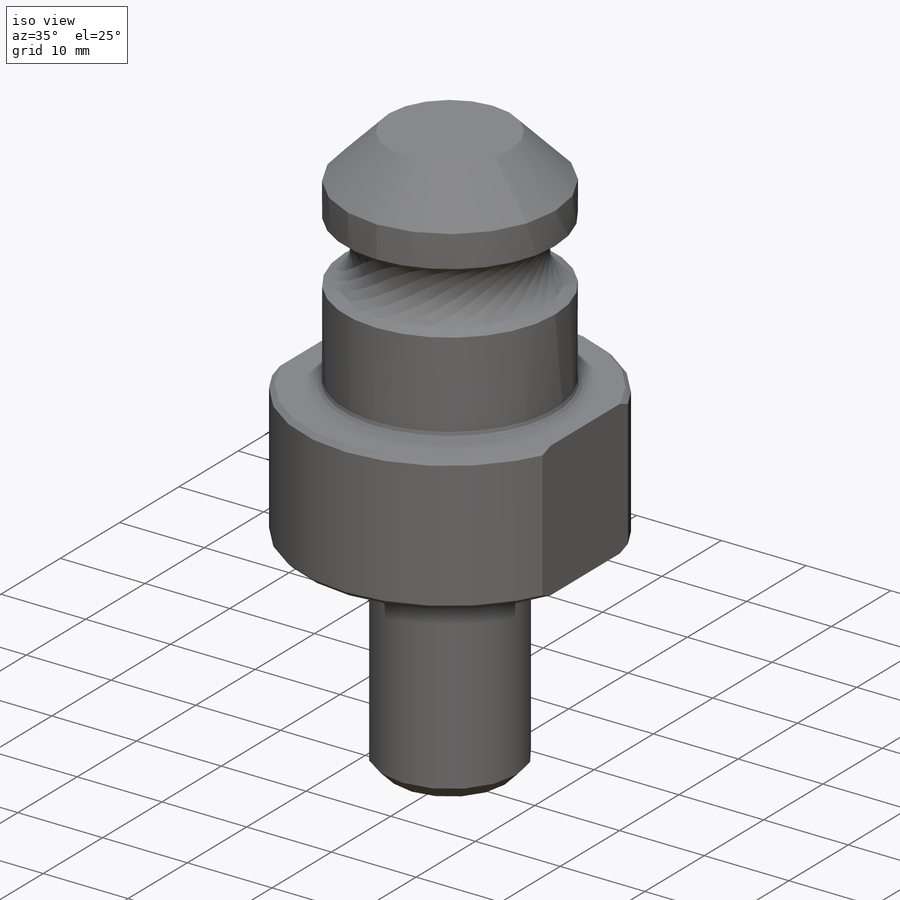
[diagram: iso view]
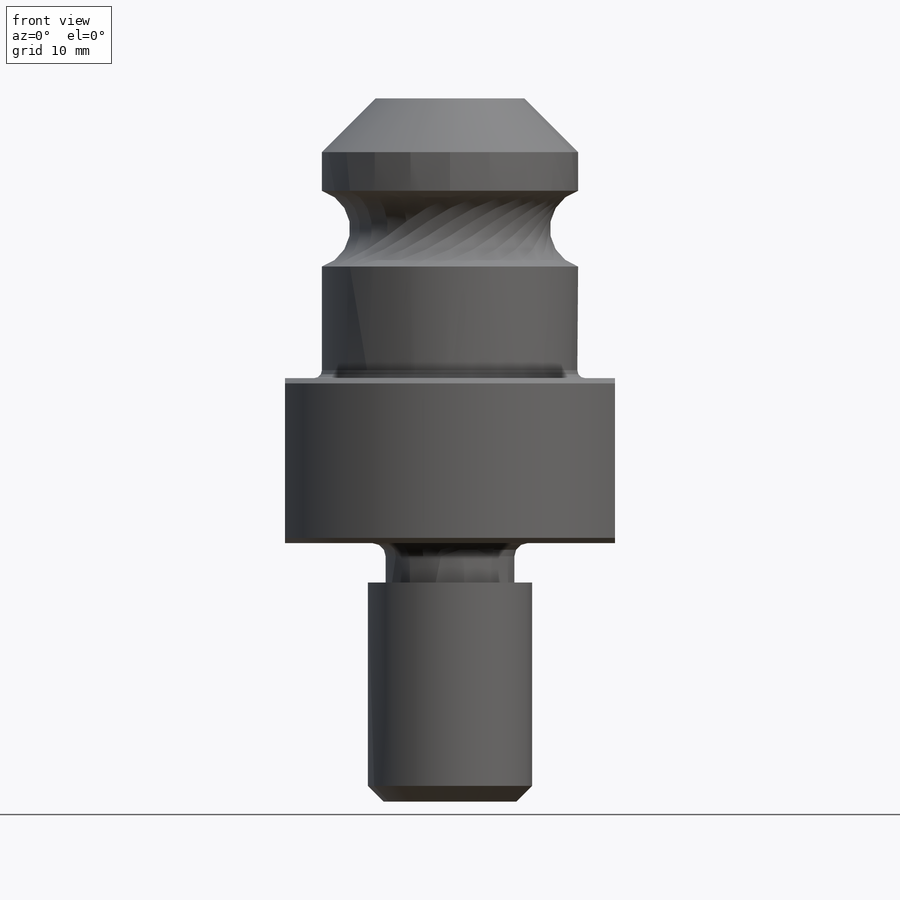
[diagram: front view]
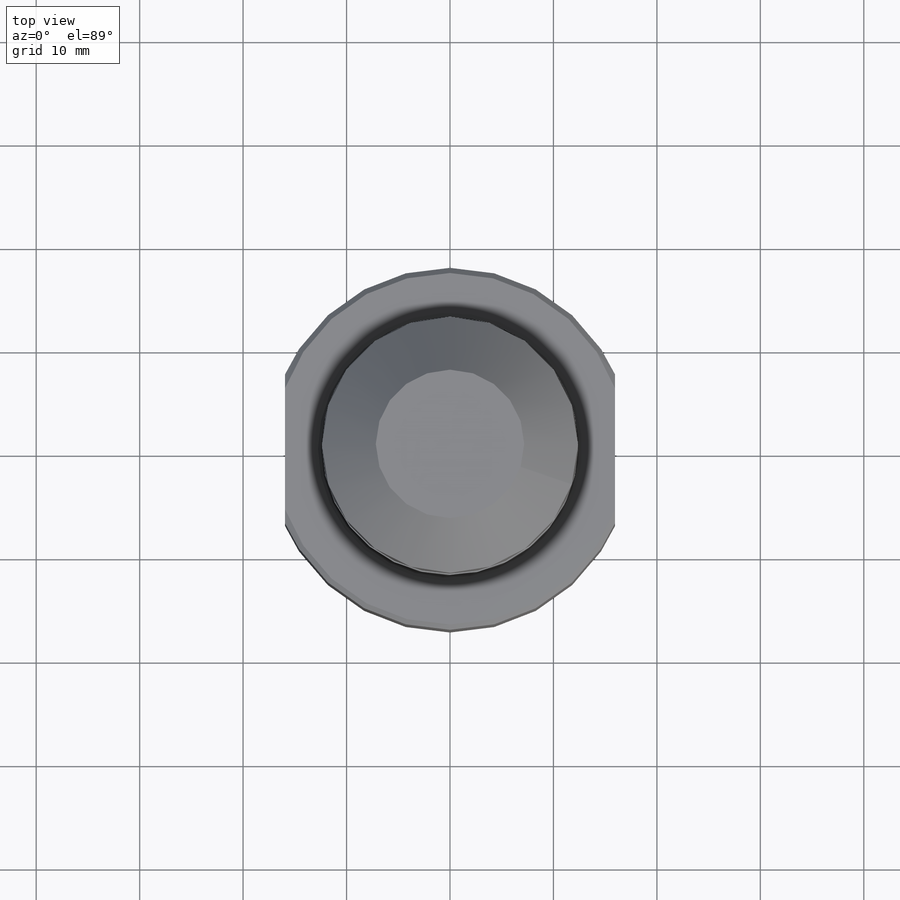
[diagram: top view]
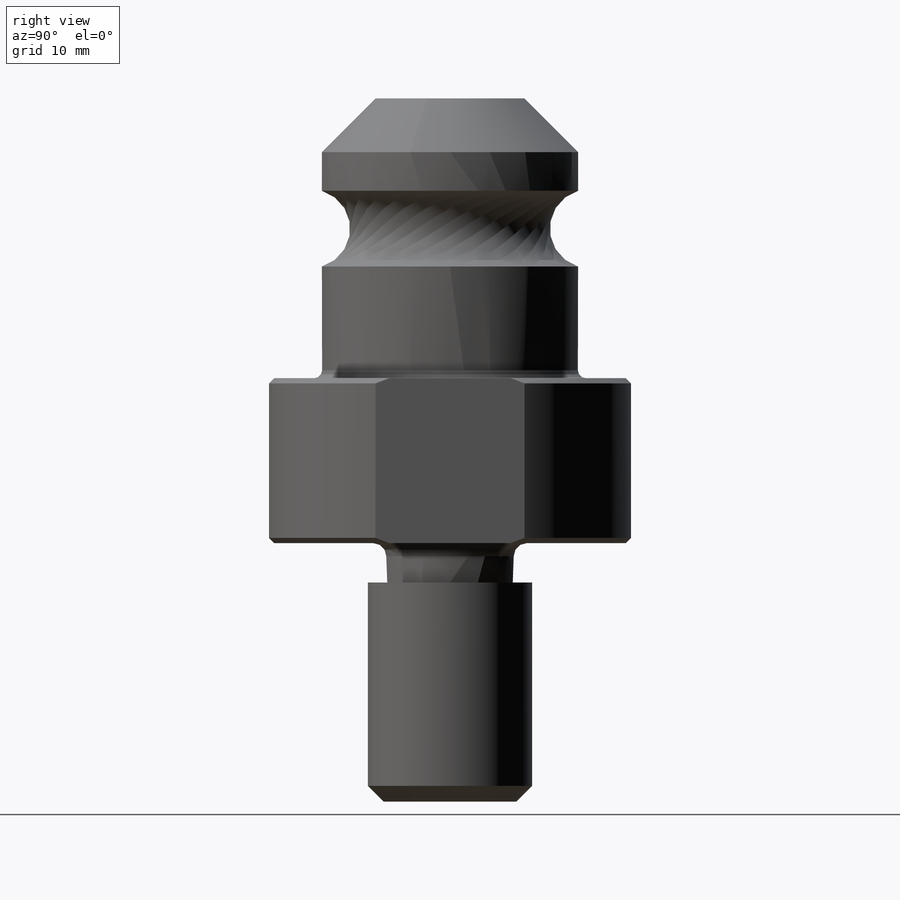
[diagram: right view]
SOLIDWORKS PART (.sldprt)
format: sldprt  version: not decoded by parser v0  size: 311,808 bytes
history: native  units: mm
features: sketch x2, chamfer x2, material x1, revolve x1, cut_extrude x1, fillet x1 (+13 scaffold rows collapsed)
feature tree (21):
  scaffold x13  (default folders/planes/origin — collapsed)
  material  "Material <not specified>"
  sketch  "Sketch1"  dims[c1.D13=~4.22757mm c1.D14=1.27mm c1.D15=~3.814991mm c1.D1=15.875mm c1.D2=12.446mm c1.D3=35.0012mm c1.D4=24.765mm c1.D5=24.9936mm c1.D6=15.9512mm c1.D7=3.81mm c1.D8=~3.239158mm c2.D8=45.0deg c2.D9=14.351mm c2.D10=43.0022mm c2.D11=10.795mm c2.D12=7.3152mm c2.D13=19.304mm]
  revolve  "Revolve1"  Angle=360deg
  chamfer  "Chamfer1"  Distance=0.508mm Angle=45deg
  chamfer  "Chamfer2"  Distance=1.524mm Angle=45deg
  sketch  "Sketch2"  dims[D1=15.9512mm D2=15.9512mm]
  cut_extrude  "Cut-Extrude1"  [1 undecoded]
  fillet  "Fillet1"  Radius=0.762mm
decode coverage: 6 of 7 modeling features carry decoded parameters
note: ~ marks probable driven/reference dimensions
note: 1 parameter value undecoded
note: suppression state not decoded; provenance and decode notes live in map.json
